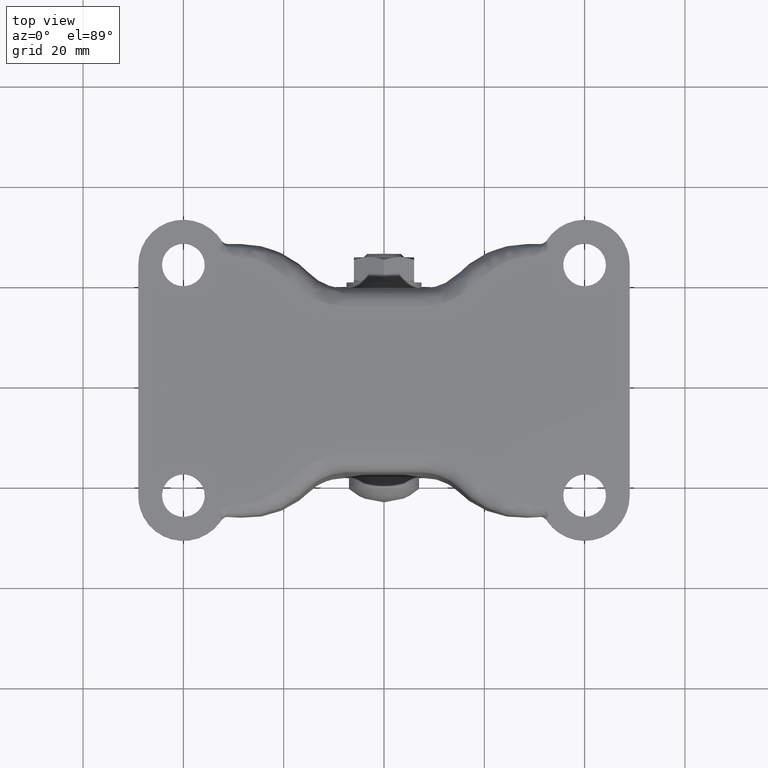
[diagram: clean part render]
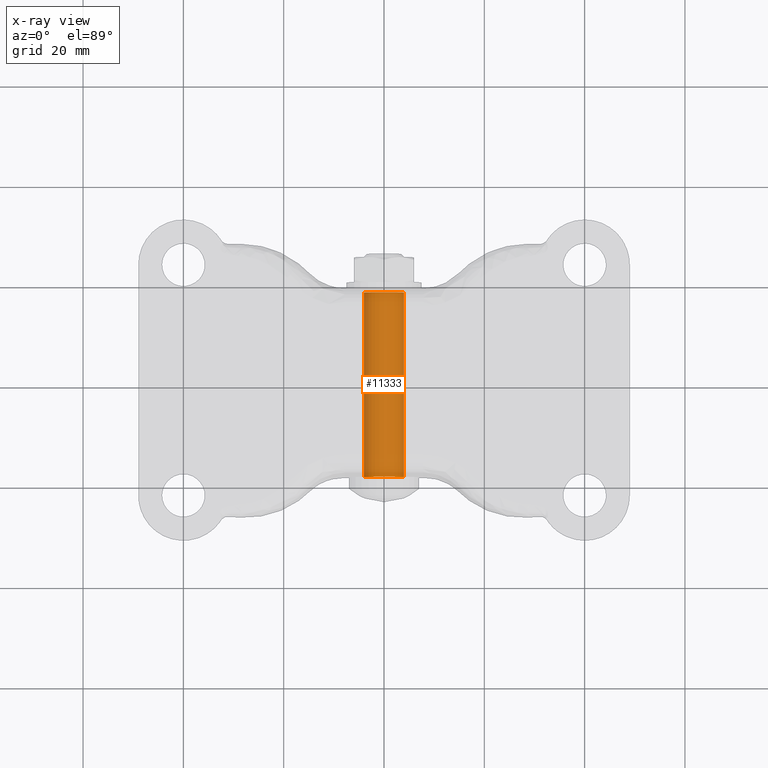
[diagram: x-ray — body ghosted, one internal face saturated and labeled with its STEP entity id]
A machine part, top view, then the same camera in x-ray: the body is ghosted and one INTERNAL B-rep face — a face not visible from any outside direction — is saturated and labeled: STEP entity #11333.
In plain terms, the highlighted face is a freeform B-spline surface patch.
Its self-contained STEP definition (entity closure, byte-faithful):
#11231=CARTESIAN_POINT('',(3.972038105454666,19.320000000000011,-54.972136938627038));
#11232=CARTESIAN_POINT('',(3.985550461794422,19.320000000000007,-54.858458914551910));
#11233=CARTESIAN_POINT('',(3.992539193687467,19.320000000000000,-54.744194158139429));
#11234=CARTESIAN_POINT('',(4.236733351826894,19.320000000000000,-50.751654964451973));
#11235=CARTESIAN_POINT('',(0.244194158139428,19.320000000000000,-50.507460806312537));
#11236=CARTESIAN_POINT('',(-3.748345035548039,19.320000000000000,-50.263266648173101));
#11237=CARTESIAN_POINT('',(-3.992539193687467,19.320000000000000,-54.255805841860571));
#11238=CARTESIAN_POINT('',(3.972038105454666,-19.343000000000004,-54.972136938627038));
#11239=CARTESIAN_POINT('',(3.985550461794422,-19.343000000000004,-54.858458914551910));
#11240=CARTESIAN_POINT('',(3.992539193687467,-19.343000000000000,-54.744194158139429));
#11241=CARTESIAN_POINT('',(4.236733351826894,-19.343000000000000,-50.751654964451973));
#11242=CARTESIAN_POINT('',(0.244194158139428,-19.343000000000000,-50.507460806312537));
#11243=CARTESIAN_POINT('',(-3.748345035548039,-19.343000000000000,-50.263266648173101));
#11244=CARTESIAN_POINT('',(-3.992539193687467,-19.343000000000000,-54.255805841860571));
#11252=(BOUNDED_SURFACE()B_SPLINE_SURFACE(2,1,((#11231,#11238),(#11232,#11239),(#11233,#11240),(#11234,#11241),(#11235,#11242),(#11236,#11243),(#11237,#11244)),.UNSPECIFIED.,.F.,.F.,.U.)B_SPLINE_SURFACE_WITH_KNOTS((3,2,2,3),(2,2),(0.0,0.265096679918781,6.892513677888305,13.519930675857831),(0.0,38.663000000000011),.UNSPECIFIED.)GEOMETRIC_REPRESENTATION_ITEM()RATIONAL_B_SPLINE_SURFACE(((0.977505800795127,0.977505800795127),(0.988284271247462,0.988284271247462),(1.0,1.0),(0.707106781186548,0.707106781186548),(1.0,1.0),(0.707106781186548,0.707106781186548),(1.0,1.0)))REPRESENTATION_ITEM('')SURFACE());
#11253=CARTESIAN_POINT('',(3.972038105441392,18.399999999999999,-54.972136938738700));
#11254=VERTEX_POINT('',#11253);
#11255=CARTESIAN_POINT('',(0.0,18.399999999999999,-50.500000000000000));
#11256=VERTEX_POINT('',#11255);
#11257=CARTESIAN_POINT('',(3.972038105441392,18.400000000000002,-54.972136938738707));
#11258=CARTESIAN_POINT('',(4.000000000000000,18.400000000000002,-54.736896478720482));
#11259=CARTESIAN_POINT('',(4.0,18.399999999999999,-54.500000000000000));
#11260=CARTESIAN_POINT('',(4.000000000000000,18.399999999999991,-50.499999999999993));
#11261=CARTESIAN_POINT('',(0.0,18.399999999999999,-50.500000000000000));
#11269=(BOUNDED_CURVE()B_SPLINE_CURVE(2,(#11257,#11258,#11259,#11260,#11261),.UNSPECIFIED.,.F.,.U.)B_SPLINE_CURVE_WITH_KNOTS((3,2,3),(0.229562473506142,0.250000000000000,0.500000000000000),.UNSPECIFIED.)CURVE()GEOMETRIC_REPRESENTATION_ITEM()RATIONAL_B_SPLINE_CURVE((0.956026754169261,0.976055948322515,1.0,0.707106781186548,1.0))REPRESENTATION_ITEM(''));
#11270=EDGE_CURVE('',#11254,#11256,#11269,.T.);
#11271=ORIENTED_EDGE('',*,*,#11270,.T.);
#11272=CARTESIAN_POINT('',(-3.992539193676789,18.399999999999999,-54.255805841685977));
#11273=VERTEX_POINT('',#11272);
#11274=CARTESIAN_POINT('',(0.0,18.399999999999999,-50.500000000000000));
#11275=CARTESIAN_POINT('',(-3.762824267293059,18.399999999999995,-50.500000000000000));
#11276=CARTESIAN_POINT('',(-3.992539193676789,18.399999999999999,-54.255805841685991));
#11284=(BOUNDED_CURVE()B_SPLINE_CURVE(2,(#11274,#11275,#11276),.UNSPECIFIED.,.F.,.U.)B_SPLINE_CURVE_WITH_KNOTS((3,3),(0.500000000000000,0.739332962226877),.UNSPECIFIED.)CURVE()GEOMETRIC_REPRESENTATION_ITEM()RATIONAL_B_SPLINE_CURVE((1.0,0.719603993300846,0.976072041640858))REPRESENTATION_ITEM(''));
#11285=EDGE_CURVE('',#11256,#11273,#11284,.T.);
#11286=ORIENTED_EDGE('',*,*,#11285,.T.);
#11287=CARTESIAN_POINT('',(-3.992539193676789,-18.399999999999999,-54.255805841685977));
#11288=VERTEX_POINT('',#11287);
#11289=CARTESIAN_POINT('',(-3.992539193676789,18.399999999999999,-54.255805841685977));
#11290=CARTESIAN_POINT('',(-3.992539193676789,-18.399999999999999,-54.255805841685977));
#11291=QUASI_UNIFORM_CURVE('',1,(#11289,#11290),.UNSPECIFIED.,.F.,.U.);
#11292=EDGE_CURVE('',#11273,#11288,#11291,.T.);
#11293=ORIENTED_EDGE('',*,*,#11292,.T.);
#11294=CARTESIAN_POINT('',(0.0,-18.399999999999999,-50.500000000000000));
#11295=VERTEX_POINT('',#11294);
#11296=CARTESIAN_POINT('',(0.0,-18.399999999999999,-50.500000000000000));
#11297=CARTESIAN_POINT('',(-3.762824267293059,-18.399999999999995,-50.500000000000000));
#11298=CARTESIAN_POINT('',(-3.992539193676789,-18.399999999999999,-54.255805841685991));
#11306=(BOUNDED_CURVE()B_SPLINE_CURVE(2,(#11296,#11297,#11298),.UNSPECIFIED.,.F.,.U.)B_SPLINE_CURVE_WITH_KNOTS((3,3),(0.500000000000000,0.739332962226877),.UNSPECIFIED.)CURVE()GEOMETRIC_REPRESENTATION_ITEM()RATIONAL_B_SPLINE_CURVE((1.0,0.719603993300846,0.976072041640858))REPRESENTATION_ITEM(''));
#11307=EDGE_CURVE('',#11295,#11288,#11306,.T.);
#11308=ORIENTED_EDGE('',*,*,#11307,.F.);
#11309=CARTESIAN_POINT('',(3.972038105441392,-18.399999999999999,-54.972136938738700));
#11310=VERTEX_POINT('',#11309);
#11311=CARTESIAN_POINT('',(3.972038105441392,-18.399999999999999,-54.972136938738700));
#11312=CARTESIAN_POINT('',(4.0,-18.399999999999999,-54.736896478720489));
#11313=CARTESIAN_POINT('',(4.0,-18.399999999999999,-54.500000000000000));
#11314=CARTESIAN_POINT('',(4.000000000000000,-18.399999999999991,-50.499999999999993));
#11315=CARTESIAN_POINT('',(0.0,-18.399999999999999,-50.500000000000000));
#11323=(BOUNDED_CURVE()B_SPLINE_CURVE(2,(#11311,#11312,#11313,#11314,#11315),.UNSPECIFIED.,.F.,.U.)B_SPLINE_CURVE_WITH_KNOTS((3,2,3),(0.229562473506142,0.250000000000000,0.500000000000000),.UNSPECIFIED.)CURVE()GEOMETRIC_REPRESENTATION_ITEM()RATIONAL_B_SPLINE_CURVE((0.956026754169261,0.976055948322515,1.0,0.707106781186548,1.0))REPRESENTATION_ITEM(''));
#11324=EDGE_CURVE('',#11310,#11295,#11323,.T.);
#11325=ORIENTED_EDGE('',*,*,#11324,.F.);
#11326=CARTESIAN_POINT('',(3.972038105441392,18.399999999999999,-54.972136938738700));
#11327=CARTESIAN_POINT('',(3.972038105441392,-18.399999999999999,-54.972136938738700));
#11328=QUASI_UNIFORM_CURVE('',1,(#11326,#11327),.UNSPECIFIED.,.F.,.U.);
#11329=EDGE_CURVE('',#11254,#11310,#11328,.T.);
#11330=ORIENTED_EDGE('',*,*,#11329,.F.);
#11331=EDGE_LOOP('',(#11271,#11286,#11293,#11308,#11325,#11330));
#11332=FACE_OUTER_BOUND('',#11331,.T.);
#11333=ADVANCED_FACE('',(#11332),#11252,.T.);